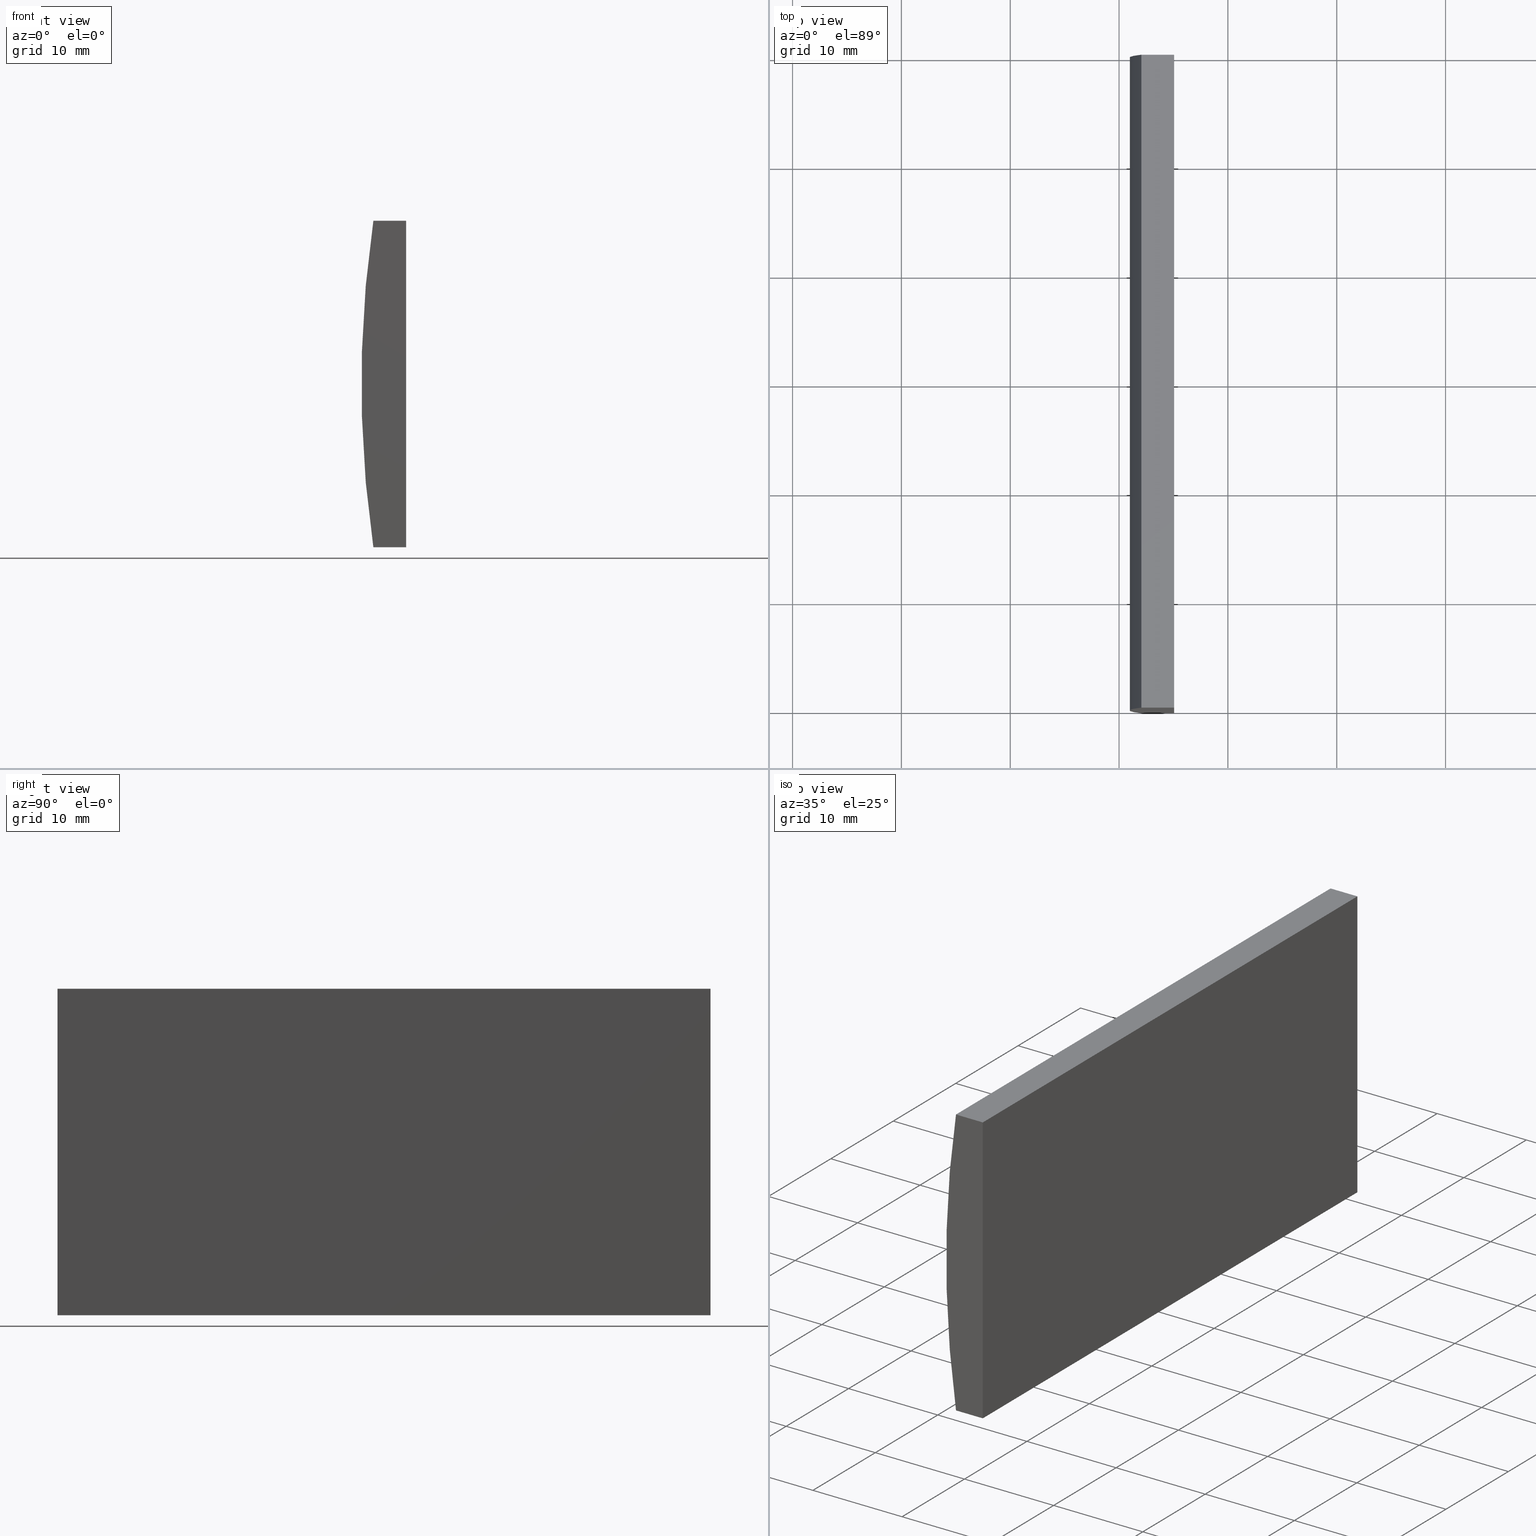
[diagram: canonical four-view strip — front | top / right | iso, engineering-drawing reading convention]
A machine part, canonical four-view strip (front | top / right | iso — engineering-drawing reading convention). The complete STEP part file that produces these views, byte-faithful:
ISO-10303-21;
HEADER;
FILE_DESCRIPTION (( 'STEP AP214' ),
    '1' );
FILE_NAME ('155061.STEP',
    '2019-06-18T08:02:32',
    ( 'user' ),
    ( '΢���й�' ),
    'SwSTEP 2.0',
    'SolidWorks 2016',
    '' );
FILE_SCHEMA (( 'AUTOMOTIVE_DESIGN' ));
ENDSEC;

DATA;
#1 = FILL_AREA_STYLE ('',( #138 ) ) ;
#2 = AXIS2_PLACEMENT_3D ( 'NONE', #162, #47, #142 ) ;
#3 = VERTEX_POINT ( 'NONE', #147 ) ;
#4 = VECTOR ( 'NONE', #148, 1000.000000000000000 ) ;
#5 = DIRECTION ( 'NONE',  ( -1.000000000000000000, 0.0000000000000000000, -0.0000000000000000000 ) ) ;
#6 = FACE_OUTER_BOUND ( 'NONE', #144, .T. ) ;
#7 = CARTESIAN_POINT ( 'NONE',  ( -97.95100271046932500, 60.00000000000000000, 15.00000000000000000 ) ) ;
#8 = ADVANCED_BREP_SHAPE_REPRESENTATION ( '155061', ( #155, #134 ), #192 ) ;
#9 =( NAMED_UNIT ( * ) PLANE_ANGLE_UNIT ( ) SI_UNIT ( $, .RADIAN. ) );
#10 = EDGE_CURVE ( 'NONE', #103, #175, #156, .T. ) ;
#11 = CARTESIAN_POINT ( 'NONE',  ( -94.94479566514876000, 60.00000000000000000, -15.00000000000000400 ) ) ;
#12 = ADVANCED_FACE ( 'NONE', ( #202 ), #132, .T. ) ;
#13 = LINE ( 'NONE', #113, #22 ) ;
#14 = PRESENTATION_LAYER_ASSIGNMENT (  '', '', ( #171 ) ) ;
#15 = UNCERTAINTY_MEASURE_WITH_UNIT (LENGTH_MEASURE( 1.000000000000000100E-005 ), #68, 'distance_accuracy_value', 'NONE');
#16 = COLOUR_RGB ( '',1.000000000000000000, 1.000000000000000000, 1.000000000000000000 ) ;
#17 = DIRECTION ( 'NONE',  ( 0.0000000000000000000, 1.000000000000000000, 0.0000000000000000000 ) ) ;
#18 = CARTESIAN_POINT ( 'NONE',  ( -94.94479566514874600, 60.00000000000000000, 15.00000000000000000 ) ) ;
#19 = CARTESIAN_POINT ( 'NONE',  ( 4.355204334851265500, 60.00000000000000000, 4.286263797015675000E-017 ) ) ;
#20 = CARTESIAN_POINT ( 'NONE',  ( -97.95100271046932500, 0.0000000000000000000, -15.00000000000000000 ) ) ;
#21 = DIRECTION ( 'NONE',  ( 1.000000000000000000, 0.0000000000000000000, 0.0000000000000000000 ) ) ;
#22 = VECTOR ( 'NONE', #130, 1000.000000000000000 ) ;
#23 = FILL_AREA_STYLE ('',( #77 ) ) ;
#24 = FACE_OUTER_BOUND ( 'NONE', #193, .T. ) ;
#25 = LINE ( 'NONE', #97, #114 ) ;
#26 = ADVANCED_FACE ( 'NONE', ( #6 ), #49, .F. ) ;
#27 = ORIENTED_EDGE ( 'NONE', *, *, #129, .F. ) ;
#28 = DIRECTION ( 'NONE',  ( 0.0000000000000000000, 0.0000000000000000000, -1.000000000000000000 ) ) ;
#29 = DIRECTION ( 'NONE',  ( 0.0000000000000000000, 0.0000000000000000000, 1.000000000000000000 ) ) ;
#30 = DIRECTION ( 'NONE',  ( -0.0000000000000000000, -1.000000000000000000, -0.0000000000000000000 ) ) ;
#31 = PRODUCT_DEFINITION_CONTEXT ( 'detailed design', #70, 'design' ) ;
#32 = DIRECTION ( 'NONE',  ( 0.0000000000000000000, 0.0000000000000000000, 1.000000000000000000 ) ) ;
#33 =( NAMED_UNIT ( * ) SI_UNIT ( $, .STERADIAN. ) SOLID_ANGLE_UNIT ( ) );
#34 = CARTESIAN_POINT ( 'NONE',  ( -97.95100271046932500, 0.0000000000000000000, 15.00000000000000000 ) ) ;
#35 = MECHANICAL_DESIGN_GEOMETRIC_PRESENTATION_REPRESENTATION (  '', ( #167 ), #65 ) ;
#36 = ORIENTED_EDGE ( 'NONE', *, *, #174, .F. ) ;
#37 = LINE ( 'NONE', #136, #48 ) ;
#38 = DIRECTION ( 'NONE',  ( 0.0000000000000000000, 1.000000000000000000, 0.0000000000000000000 ) ) ;
#39 =( LENGTH_UNIT ( ) NAMED_UNIT ( * ) SI_UNIT ( .MILLI., .METRE. ) );
#40 = SHAPE_DEFINITION_REPRESENTATION ( #78, #8 ) ;
#41 = CARTESIAN_POINT ( 'NONE',  ( -94.94479566514874600, 0.0000000000000000000, 15.00000000000000000 ) ) ;
#42 = APPLICATION_PROTOCOL_DEFINITION ( 'draft international standard', 'automotive_design', 1998, #70 ) ;
#43 = DIRECTION ( 'NONE',  ( -4.625929269271485900E-016, -0.0000000000000000000, -1.000000000000000000 ) ) ;
#44 = EDGE_LOOP ( 'NONE', ( #92, #123, #161, #198 ) ) ;
#45 = FACE_OUTER_BOUND ( 'NONE', #44, .T. ) ;
#46 = CARTESIAN_POINT ( 'NONE',  ( -97.95100271046932500, 0.0000000000000000000, 15.00000000000000000 ) ) ;
#47 = DIRECTION ( 'NONE',  ( 1.154094478407304000E-015, -0.0000000000000000000, 1.000000000000000000 ) ) ;
#48 = VECTOR ( 'NONE', #185, 1000.000000000000000 ) ;
#49 = PLANE ( 'NONE',  #79 ) ;
#50 = DIRECTION ( 'NONE',  ( -1.000000000000000000, 0.0000000000000000000, 4.625929269271485900E-016 ) ) ;
#51 = ORIENTED_EDGE ( 'NONE', *, *, #111, .T. ) ;
#52 = PLANE ( 'NONE',  #2 ) ;
#53 = DIRECTION ( 'NONE',  ( 0.0000000000000000000, 0.0000000000000000000, 1.000000000000000000 ) ) ;
#54 = ORIENTED_EDGE ( 'NONE', *, *, #183, .F. ) ;
#55 = ADVANCED_FACE ( 'NONE', ( #57 ), #60, .T. ) ;
#56 = AXIS2_PLACEMENT_3D ( 'NONE', #165, #17, #195 ) ;
#57 = FACE_OUTER_BOUND ( 'NONE', #120, .T. ) ;
#58 = ORIENTED_EDGE ( 'NONE', *, *, #107, .T. ) ;
#59 = VERTEX_POINT ( 'NONE', #173 ) ;
#60 = CYLINDRICAL_SURFACE ( 'NONE', #151, 103.4000000000000200 ) ;
#61 =( NAMED_UNIT ( * ) SI_UNIT ( $, .STERADIAN. ) SOLID_ANGLE_UNIT ( ) );
#62 = CARTESIAN_POINT ( 'NONE',  ( 4.355204334851265500, 0.0000000000000000000, 4.286263797015675000E-017 ) ) ;
#63 = ORIENTED_EDGE ( 'NONE', *, *, #111, .F. ) ;
#64 = DIRECTION ( 'NONE',  ( -0.0000000000000000000, -1.000000000000000000, -0.0000000000000000000 ) ) ;
#65 =( GEOMETRIC_REPRESENTATION_CONTEXT ( 3 ) GLOBAL_UNCERTAINTY_ASSIGNED_CONTEXT ( ( #15 ) ) GLOBAL_UNIT_ASSIGNED_CONTEXT ( ( #68, #9, #33 ) ) REPRESENTATION_CONTEXT ( 'NONE', 'WORKASPACE' ) );
#66 = SURFACE_STYLE_USAGE ( .BOTH. , #119 ) ;
#67 = EDGE_LOOP ( 'NONE', ( #71, #143, #58, #187 ) ) ;
#68 =( LENGTH_UNIT ( ) NAMED_UNIT ( * ) SI_UNIT ( .MILLI., .METRE. ) );
#69 = EDGE_CURVE ( 'NONE', #191, #176, #87, .T. ) ;
#70 = APPLICATION_CONTEXT ( 'automotive_design' ) ;
#71 = ORIENTED_EDGE ( 'NONE', *, *, #116, .T. ) ;
#72 = PRESENTATION_LAYER_ASSIGNMENT (  '', '', ( #167 ) ) ;
#73 = DIRECTION ( 'NONE',  ( 0.0000000000000000000, 0.0000000000000000000, -1.000000000000000000 ) ) ;
#74 = VERTEX_POINT ( 'NONE', #190 ) ;
#75 = ADVANCED_FACE ( 'NONE', ( #112 ), #122, .F. ) ;
#76 = DIRECTION ( 'NONE',  ( 4.625929269271485900E-016, 0.0000000000000000000, 1.000000000000000000 ) ) ;
#77 = FILL_AREA_STYLE_COLOUR ( '', #163 ) ;
#78 = PRODUCT_DEFINITION_SHAPE ( 'NONE', 'NONE',  #91 ) ;
#79 = AXIS2_PLACEMENT_3D ( 'NONE', #62, #82, #180 ) ;
#80 = CIRCLE ( 'NONE', #179, 103.4000000000000200 ) ;
#81 =( NAMED_UNIT ( * ) SI_UNIT ( $, .STERADIAN. ) SOLID_ANGLE_UNIT ( ) );
#82 = DIRECTION ( 'NONE',  ( 0.0000000000000000000, 1.000000000000000000, 0.0000000000000000000 ) ) ;
#83 = AXIS2_PLACEMENT_3D ( 'NONE', #131, #50, #76 ) ;
#84 = ORIENTED_EDGE ( 'NONE', *, *, #10, .F. ) ;
#85 = PRODUCT_CONTEXT ( 'NONE', #186, 'mechanical' ) ;
#86 =( NAMED_UNIT ( * ) PLANE_ANGLE_UNIT ( ) SI_UNIT ( $, .RADIAN. ) );
#87 = LINE ( 'NONE', #34, #157 ) ;
#88 =( GEOMETRIC_REPRESENTATION_CONTEXT ( 3 ) GLOBAL_UNCERTAINTY_ASSIGNED_CONTEXT ( ( #115 ) ) GLOBAL_UNIT_ASSIGNED_CONTEXT ( ( #39, #196, #81 ) ) REPRESENTATION_CONTEXT ( 'NONE', 'WORKASPACE' ) );
#89 = LINE ( 'NONE', #20, #4 ) ;
#90 = EDGE_CURVE ( 'NONE', #3, #191, #80, .T. ) ;
#91 = PRODUCT_DEFINITION ( 'δ֪', '', #154, #31 ) ;
#92 = ORIENTED_EDGE ( 'NONE', *, *, #105, .T. ) ;
#93 = SURFACE_STYLE_USAGE ( .BOTH. , #189 ) ;
#94 = VERTEX_POINT ( 'NONE', #18 ) ;
#95 = LINE ( 'NONE', #153, #194 ) ;
#96 = CARTESIAN_POINT ( 'NONE',  ( 0.0000000000000000000, 0.0000000000000000000, 0.0000000000000000000 ) ) ;
#97 = CARTESIAN_POINT ( 'NONE',  ( -94.94479566514876000, 0.0000000000000000000, -15.00000000000000400 ) ) ;
#98 = CARTESIAN_POINT ( 'NONE',  ( -97.95100271046932500, 60.00000000000000000, 15.00000000000000000 ) ) ;
#99 = CIRCLE ( 'NONE', #201, 103.4000000000000200 ) ;
#100 = SURFACE_STYLE_FILL_AREA ( #23 ) ;
#101 = VECTOR ( 'NONE', #203, 1000.000000000000000 ) ;
#102 = LINE ( 'NONE', #149, #126 ) ;
#103 = VERTEX_POINT ( 'NONE', #11 ) ;
#104 = ORIENTED_EDGE ( 'NONE', *, *, #90, .T. ) ;
#105 = EDGE_CURVE ( 'NONE', #175, #3, #89, .T. ) ;
#106 = CARTESIAN_POINT ( 'NONE',  ( -94.94479566514876000, 0.0000000000000000000, -15.00000000000000400 ) ) ;
#107 = EDGE_CURVE ( 'NONE', #94, #103, #37, .T. ) ;
#108 = DIRECTION ( 'NONE',  ( -0.0000000000000000000, -1.000000000000000000, -0.0000000000000000000 ) ) ;
#109 = ORIENTED_EDGE ( 'NONE', *, *, #137, .T. ) ;
#110 = AXIS2_PLACEMENT_3D ( 'NONE', #98, #28, #5 ) ;
#111 = EDGE_CURVE ( 'NONE', #176, #175, #25, .T. ) ;
#112 = FACE_OUTER_BOUND ( 'NONE', #160, .T. ) ;
#113 = CARTESIAN_POINT ( 'NONE',  ( -97.95100271046932500, 60.00000000000000000, 15.00000000000000000 ) ) ;
#114 = VECTOR ( 'NONE', #43, 1000.000000000000000 ) ;
#115 = UNCERTAINTY_MEASURE_WITH_UNIT (LENGTH_MEASURE( 1.000000000000000100E-005 ), #39, 'distance_accuracy_value', 'NONE');
#116 = EDGE_CURVE ( 'NONE', #59, #74, #99, .T. ) ;
#117 = PRODUCT_RELATED_PRODUCT_CATEGORY ( 'part', '', ( #127 ) ) ;
#118 = ORIENTED_EDGE ( 'NONE', *, *, #105, .F. ) ;
#119 = SURFACE_SIDE_STYLE ('',( #100 ) ) ;
#120 = EDGE_LOOP ( 'NONE', ( #104, #54, #168, #109 ) ) ;
#121 = DIRECTION ( 'NONE',  ( 1.000000000000000000, 0.0000000000000000000, 0.0000000000000000000 ) ) ;
#122 = PLANE ( 'NONE',  #83 ) ;
#123 = ORIENTED_EDGE ( 'NONE', *, *, #137, .F. ) ;
#124 = CARTESIAN_POINT ( 'NONE',  ( 4.355204334851265500, 0.0000000000000000000, 4.286263797015675000E-017 ) ) ;
#125 = PLANE ( 'NONE',  #110 ) ;
#126 = VECTOR ( 'NONE', #141, 1000.000000000000000 ) ;
#127 = PRODUCT ( '155061', '155061', '', ( #85 ) ) ;
#128 = CARTESIAN_POINT ( 'NONE',  ( -94.94479566514874600, 60.00000000000000000, 15.00000000000000000 ) ) ;
#129 = EDGE_CURVE ( 'NONE', #74, #94, #13, .T. ) ;
#130 = DIRECTION ( 'NONE',  ( 1.000000000000000000, 0.0000000000000000000, 0.0000000000000000000 ) ) ;
#131 = CARTESIAN_POINT ( 'NONE',  ( -94.94479566514876000, 60.00000000000000000, -15.00000000000000400 ) ) ;
#132 = PLANE ( 'NONE',  #56 ) ;
#133 = CARTESIAN_POINT ( 'NONE',  ( -94.94479566514876000, 60.00000000000000000, -15.00000000000000400 ) ) ;
#134 = AXIS2_PLACEMENT_3D ( 'NONE', #96, #53, #21 ) ;
#135 = PRESENTATION_STYLE_ASSIGNMENT (( #66 ) ) ;
#136 = CARTESIAN_POINT ( 'NONE',  ( -94.94479566514876000, 60.00000000000000000, -15.00000000000000400 ) ) ;
#137 = EDGE_CURVE ( 'NONE', #59, #3, #95, .T. ) ;
#138 = FILL_AREA_STYLE_COLOUR ( '', #16 ) ;
#139 = DIRECTION ( 'NONE',  ( 0.0000000000000000000, 1.000000000000000000, 0.0000000000000000000 ) ) ;
#140 = CLOSED_SHELL ( 'NONE', ( #55, #172, #75, #170, #12, #26 ) ) ;
#141 = DIRECTION ( 'NONE',  ( -1.000000000000000000, -0.0000000000000000000, 1.154094478407304000E-015 ) ) ;
#142 = DIRECTION ( 'NONE',  ( 1.000000000000000000, 0.0000000000000000000, -1.154094478407304000E-015 ) ) ;
#143 = ORIENTED_EDGE ( 'NONE', *, *, #129, .T. ) ;
#144 = EDGE_LOOP ( 'NONE', ( #164, #118, #63, #181 ) ) ;
#145 = SURFACE_STYLE_FILL_AREA ( #1 ) ;
#146 = VECTOR ( 'NONE', #108, 1000.000000000000000 ) ;
#147 = CARTESIAN_POINT ( 'NONE',  ( -97.95100271046932500, 0.0000000000000000000, -15.00000000000000000 ) ) ;
#148 = DIRECTION ( 'NONE',  ( -1.000000000000000000, -0.0000000000000000000, 1.154094478407304000E-015 ) ) ;
#149 = CARTESIAN_POINT ( 'NONE',  ( -97.95100271046932500, 60.00000000000000000, -15.00000000000000000 ) ) ;
#150 = APPLICATION_PROTOCOL_DEFINITION ( 'draft international standard', 'automotive_design', 1998, #186 ) ;
#151 = AXIS2_PLACEMENT_3D ( 'NONE', #166, #64, #73 ) ;
#152 = PRESENTATION_STYLE_ASSIGNMENT (( #93 ) ) ;
#153 = CARTESIAN_POINT ( 'NONE',  ( -97.95100271046932500, 60.00000000000000000, -15.00000000000000000 ) ) ;
#154 = PRODUCT_DEFINITION_FORMATION_WITH_SPECIFIED_SOURCE ( '�κ�', '', #127, .NOT_KNOWN. ) ;
#155 = MANIFOLD_SOLID_BREP ( '͹̨-����1', #140 ) ;
#156 = LINE ( 'NONE', #133, #101 ) ;
#157 = VECTOR ( 'NONE', #121, 1000.000000000000000 ) ;
#158 = MECHANICAL_DESIGN_GEOMETRIC_PRESENTATION_REPRESENTATION (  '', ( #171 ), #88 ) ;
#159 = ORIENTED_EDGE ( 'NONE', *, *, #69, .T. ) ;
#160 = EDGE_LOOP ( 'NONE', ( #51, #84, #200, #188 ) ) ;
#161 = ORIENTED_EDGE ( 'NONE', *, *, #178, .F. ) ;
#162 = CARTESIAN_POINT ( 'NONE',  ( -97.95100271046932500, 60.00000000000000000, -15.00000000000000000 ) ) ;
#163 = COLOUR_RGB ( '',1.000000000000000000, 1.000000000000000000, 1.000000000000000000 ) ;
#164 = ORIENTED_EDGE ( 'NONE', *, *, #90, .F. ) ;
#165 = CARTESIAN_POINT ( 'NONE',  ( 4.355204334851265500, 60.00000000000000000, 4.286263797015675000E-017 ) ) ;
#166 = CARTESIAN_POINT ( 'NONE',  ( 4.355204334851265500, 60.00000000000000000, 4.286263797015675000E-017 ) ) ;
#167 = STYLED_ITEM ( 'NONE', ( #152 ), #155 ) ;
#168 = ORIENTED_EDGE ( 'NONE', *, *, #116, .F. ) ;
#169 = LINE ( 'NONE', #7, #146 ) ;
#170 = ADVANCED_FACE ( 'NONE', ( #45 ), #52, .F. ) ;
#171 = STYLED_ITEM ( 'NONE', ( #135 ), #8 ) ;
#172 = ADVANCED_FACE ( 'NONE', ( #24 ), #125, .F. ) ;
#173 = CARTESIAN_POINT ( 'NONE',  ( -97.95100271046932500, 60.00000000000000000, -15.00000000000000000 ) ) ;
#174 = EDGE_CURVE ( 'NONE', #94, #176, #177, .T. ) ;
#175 = VERTEX_POINT ( 'NONE', #106 ) ;
#176 = VERTEX_POINT ( 'NONE', #41 ) ;
#177 = LINE ( 'NONE', #128, #204 ) ;
#178 = EDGE_CURVE ( 'NONE', #103, #59, #102, .T. ) ;
#179 = AXIS2_PLACEMENT_3D ( 'NONE', #124, #38, #32 ) ;
#180 = DIRECTION ( 'NONE',  ( 0.0000000000000000000, -0.0000000000000000000, 1.000000000000000000 ) ) ;
#181 = ORIENTED_EDGE ( 'NONE', *, *, #69, .F. ) ;
#182 = DIRECTION ( 'NONE',  ( -0.0000000000000000000, -1.000000000000000000, -0.0000000000000000000 ) ) ;
#183 = EDGE_CURVE ( 'NONE', #74, #191, #169, .T. ) ;
#184 = ORIENTED_EDGE ( 'NONE', *, *, #183, .T. ) ;
#185 = DIRECTION ( 'NONE',  ( -4.625929269271485900E-016, -0.0000000000000000000, -1.000000000000000000 ) ) ;
#186 = APPLICATION_CONTEXT ( 'automotive_design' ) ;
#187 = ORIENTED_EDGE ( 'NONE', *, *, #178, .T. ) ;
#188 = ORIENTED_EDGE ( 'NONE', *, *, #174, .T. ) ;
#189 = SURFACE_SIDE_STYLE ('',( #145 ) ) ;
#190 = CARTESIAN_POINT ( 'NONE',  ( -97.95100271046932500, 60.00000000000000000, 15.00000000000000000 ) ) ;
#191 = VERTEX_POINT ( 'NONE', #46 ) ;
#192 =( GEOMETRIC_REPRESENTATION_CONTEXT ( 3 ) GLOBAL_UNCERTAINTY_ASSIGNED_CONTEXT ( ( #197 ) ) GLOBAL_UNIT_ASSIGNED_CONTEXT ( ( #199, #86, #61 ) ) REPRESENTATION_CONTEXT ( 'NONE', 'WORKASPACE' ) );
#193 = EDGE_LOOP ( 'NONE', ( #159, #36, #27, #184 ) ) ;
#194 = VECTOR ( 'NONE', #30, 1000.000000000000000 ) ;
#195 = DIRECTION ( 'NONE',  ( 0.0000000000000000000, -0.0000000000000000000, 1.000000000000000000 ) ) ;
#196 =( NAMED_UNIT ( * ) PLANE_ANGLE_UNIT ( ) SI_UNIT ( $, .RADIAN. ) );
#197 = UNCERTAINTY_MEASURE_WITH_UNIT (LENGTH_MEASURE( 1.000000000000000100E-005 ), #199, 'distance_accuracy_value', 'NONE');
#198 = ORIENTED_EDGE ( 'NONE', *, *, #10, .T. ) ;
#199 =( LENGTH_UNIT ( ) NAMED_UNIT ( * ) SI_UNIT ( .MILLI., .METRE. ) );
#200 = ORIENTED_EDGE ( 'NONE', *, *, #107, .F. ) ;
#201 = AXIS2_PLACEMENT_3D ( 'NONE', #19, #139, #29 ) ;
#202 = FACE_OUTER_BOUND ( 'NONE', #67, .T. ) ;
#203 = DIRECTION ( 'NONE',  ( -0.0000000000000000000, -1.000000000000000000, -0.0000000000000000000 ) ) ;
#204 = VECTOR ( 'NONE', #182, 1000.000000000000000 ) ;
ENDSEC;
END-ISO-10303-21;
